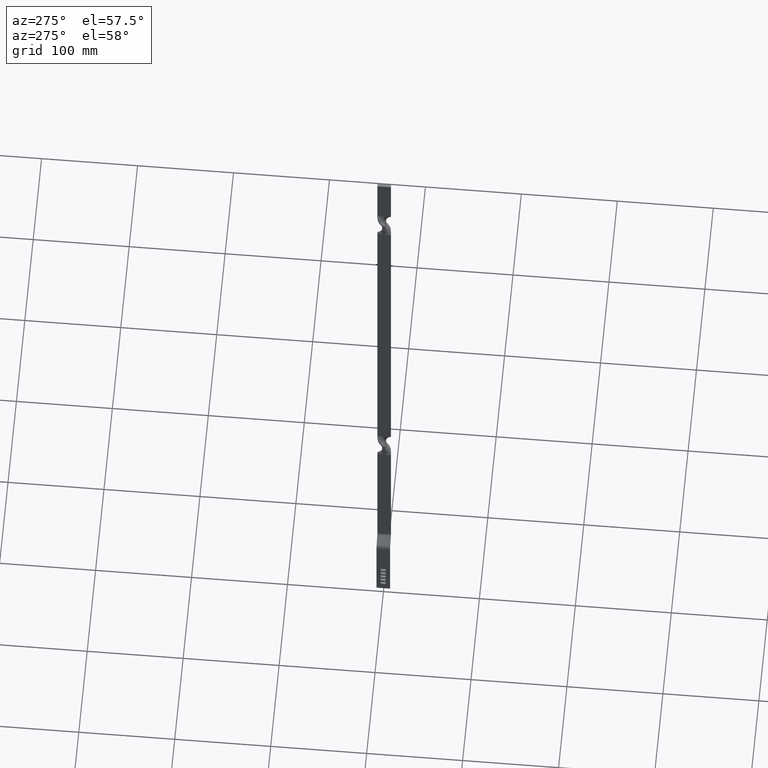
[diagram: clean part render]
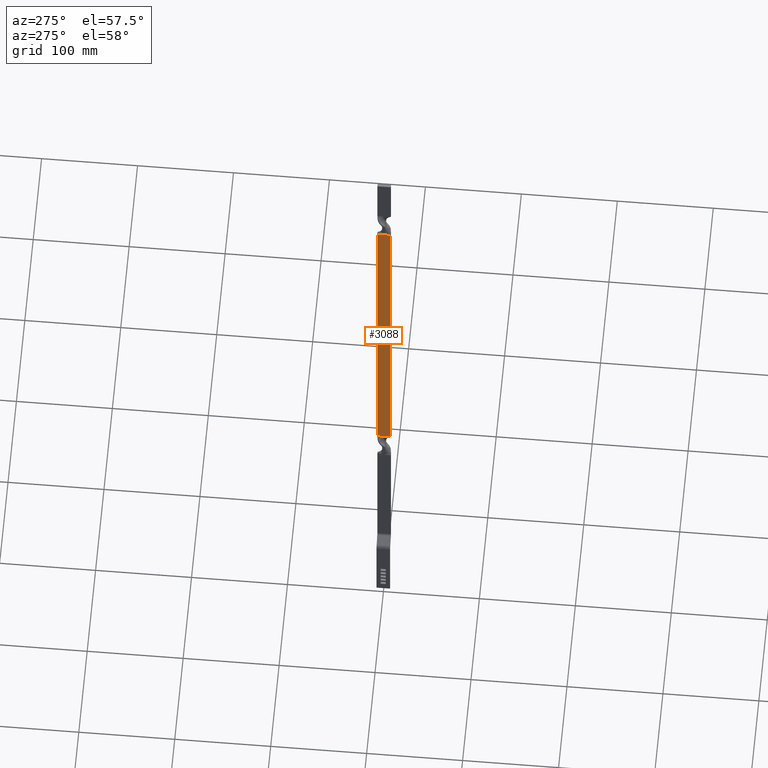
[diagram: same view with one face highlighted and labeled with its STEP entity id]
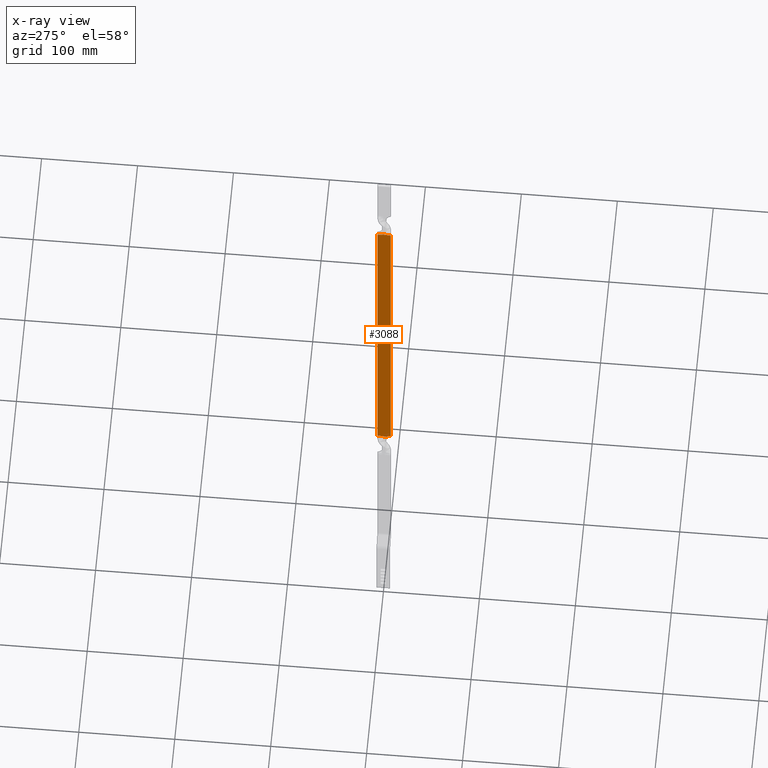
[diagram: x-ray of the same camera — body ghosted, the highlighted face saturated]
A machine part, auxiliary view. The second image highlights one B-rep face of the part: STEP entity #3088.
The next image is the same camera in x-ray: the body ghosted, the highlighted face saturated — about 0% of this face is hidden behind the body in this view.
In plain terms, the highlighted face is a freeform B-spline surface patch.
Its self-contained STEP definition (entity closure, byte-faithful):
#299=CARTESIAN_POINT('',(7.499999999976470,0.271775746038353,656.499999864693000));
#300=VERTEX_POINT('',#299);
#301=CARTESIAN_POINT('',(7.499999999976470,6.999999999999870,655.313138716524010));
#302=VERTEX_POINT('',#301);
#303=CARTESIAN_POINT('',(7.499999999976470,0.271775746038353,656.499999864693000));
#304=CARTESIAN_POINT('',(7.499999999976469,0.828537849573905,656.380513610637540));
#305=CARTESIAN_POINT('',(7.499999999976388,1.385487364079023,656.259859835019030));
#306=CARTESIAN_POINT('',(7.499999999976385,2.501421362213301,656.030177948730400));
#307=CARTESIAN_POINT('',(7.499999999976424,3.060560236041071,655.921247942991270));
#308=CARTESIAN_POINT('',(7.499999999976424,4.182009287864857,655.720279087430190));
#309=CARTESIAN_POINT('',(7.499999999976300,4.743986133300940,655.628099401617080));
#310=CARTESIAN_POINT('',(7.499999999976303,5.870319582463361,655.459521368671290));
#311=CARTESIAN_POINT('',(7.499999999976470,6.434663200717687,655.383036908535470));
#312=CARTESIAN_POINT('',(7.499999999976470,6.999999999999870,655.313138716524010));
#313=B_SPLINE_CURVE_WITH_KNOTS('',3,(#303,#304,#305,#306,#307,#308,#309,#310,#311,#312),.UNSPECIFIED.,.F.,.U.,(4,2,2,2,4),(0.0,0.250000000000000,0.500000000000000,0.750000000000000,1.0),.UNSPECIFIED.);
#314=EDGE_CURVE('',#300,#302,#313,.T.);
#447=CARTESIAN_POINT('',(7.499999999976470,-7.000000000000131,655.289823060113120));
#448=VERTEX_POINT('',#447);
#449=CARTESIAN_POINT('',(7.499999999976470,-7.000000000000131,655.289823060113120));
#450=CARTESIAN_POINT('',(7.499999999976470,-6.389812878324966,655.363019088055690));
#451=CARTESIAN_POINT('',(7.499999999976422,-5.780642736340934,655.443213533535750));
#452=CARTESIAN_POINT('',(7.499999999976418,-4.564574697634991,655.619239040672710));
#453=CARTESIAN_POINT('',(7.499999999976587,-3.957689163754437,655.715155178095760));
#454=CARTESIAN_POINT('',(7.499999999976587,-2.746067614053443,655.921779513215600));
#455=CARTESIAN_POINT('',(7.499999999976475,-2.141573673937930,656.032512532912850));
#456=CARTESIAN_POINT('',(7.499999999976477,-0.934187228391737,656.262608756826920));
#457=CARTESIAN_POINT('',(7.499999999976412,-0.331125423913616,656.381840325032160));
#458=CARTESIAN_POINT('',(7.499999999976470,0.271775746038353,656.499999864693000));
#459=B_SPLINE_CURVE_WITH_KNOTS('',3,(#449,#450,#451,#452,#453,#454,#455,#456,#457,#458),.UNSPECIFIED.,.F.,.U.,(4,2,2,2,4),(0.0,0.250000000000000,0.500000000000000,0.750000000000000,1.0),.UNSPECIFIED.);
#460=EDGE_CURVE('',#448,#300,#459,.T.);
#1584=CARTESIAN_POINT('',(7.499999999976470,0.271775746040857,266.499999864581980));
#1585=VERTEX_POINT('',#1584);
#1618=CARTESIAN_POINT('',(7.499999999976470,6.999999999999870,267.686861012630000));
#1619=VERTEX_POINT('',#1618);
#1620=CARTESIAN_POINT('',(7.499999999976470,6.999999999999861,267.686861012630000));
#1621=CARTESIAN_POINT('',(7.499999999976471,6.434663200717731,267.616962820619510));
#1622=CARTESIAN_POINT('',(7.499999999976607,5.870319582463286,267.540478360485620));
#1623=CARTESIAN_POINT('',(7.499999999976609,4.743986133300860,267.371900327541820));
#1624=CARTESIAN_POINT('',(7.499999999976424,4.182009287864823,267.279720641729230));
#1625=CARTESIAN_POINT('',(7.499999999976424,3.060560236040976,267.078751786170190));
#1626=CARTESIAN_POINT('',(7.499999999976454,2.501421362213195,266.969821780431520));
#1627=CARTESIAN_POINT('',(7.499999999976453,1.385487364078898,266.740139894144700));
#1628=CARTESIAN_POINT('',(7.499999999976470,0.828537849579285,266.619486118501070));
#1629=CARTESIAN_POINT('',(7.499999999976470,0.271775746040857,266.499999864581980));
#1630=B_SPLINE_CURVE_WITH_KNOTS('',3,(#1620,#1621,#1622,#1623,#1624,#1625,#1626,#1627,#1628,#1629),.UNSPECIFIED.,.F.,.U.,(4,2,2,2,4),(0.0,0.250000000000000,0.500000000000000,0.750000000000000,1.0),.UNSPECIFIED.);
#1631=EDGE_CURVE('',#1619,#1585,#1630,.T.);
#1696=CARTESIAN_POINT('',(7.499999999976470,-7.000000000000131,267.710176669059480));
#1697=VERTEX_POINT('',#1696);
#1711=CARTESIAN_POINT('',(7.499999999976470,0.271775746040857,266.499999864581980));
#1712=CARTESIAN_POINT('',(7.499999999976470,-0.331125423910386,266.618159404148630));
#1713=CARTESIAN_POINT('',(7.499999999976484,-0.934187228391861,266.737390972337610));
#1714=CARTESIAN_POINT('',(7.499999999976485,-2.141573673938109,266.967487196252700));
#1715=CARTESIAN_POINT('',(7.499999999976443,-2.746067614053573,267.078220215950810));
#1716=CARTESIAN_POINT('',(7.499999999976440,-3.957689163754502,267.284844551072300));
#1717=CARTESIAN_POINT('',(7.499999999976520,-4.564574697635001,267.380760688496030));
#1718=CARTESIAN_POINT('',(7.499999999976523,-5.780642736340882,267.556786195635420));
#1719=CARTESIAN_POINT('',(7.499999999976471,-6.389812878324962,267.636980641115880));
#1720=CARTESIAN_POINT('',(7.499999999976470,-7.000000000000131,267.710176669059480));
#1721=B_SPLINE_CURVE_WITH_KNOTS('',3,(#1711,#1712,#1713,#1714,#1715,#1716,#1717,#1718,#1719,#1720),.UNSPECIFIED.,.F.,.U.,(4,2,2,2,4),(0.0,0.250000000000000,0.500000000000000,0.750000000000000,1.0),.UNSPECIFIED.);
#1722=EDGE_CURVE('',#1585,#1697,#1721,.T.);
#3062=CARTESIAN_POINT('',(7.499999999976470,6.999999999999870,655.313138716524010));
#3063=CARTESIAN_POINT('',(7.499999999976470,6.999999999999870,267.686861012630000));
#3064=QUASI_UNIFORM_CURVE('',1,(#3062,#3063),.UNSPECIFIED.,.F.,.U.);
#3065=EDGE_CURVE('',#302,#1619,#3064,.T.);
#3071=CARTESIAN_POINT('',(7.499999999976470,-7.699299972865417,247.019500620472090));
#3072=CARTESIAN_POINT('',(7.499999999976470,-7.699299972865417,675.980509569418020));
#3073=CARTESIAN_POINT('',(7.499999999976470,7.699300348374417,247.019500620472090));
#3074=CARTESIAN_POINT('',(7.499999999976470,7.699300348374417,675.980509569418020));
#3075=B_SPLINE_SURFACE_WITH_KNOTS('',1,1,((#3071,#3073),(#3072,#3074)),.UNSPECIFIED.,.F.,.F.,.U.,(2,2),(2,2),(0.0,428.961008948945900),(0.0,15.398600321239829),.UNSPECIFIED.);
#3076=CARTESIAN_POINT('',(7.499999999976470,-7.000000000000131,655.289823060113120));
#3077=CARTESIAN_POINT('',(7.499999999976470,-7.000000000000131,267.710176669059480));
#3078=QUASI_UNIFORM_CURVE('',1,(#3076,#3077),.UNSPECIFIED.,.F.,.U.);
#3079=EDGE_CURVE('',#448,#1697,#3078,.T.);
#3080=ORIENTED_EDGE('',*,*,#3079,.F.);
#3081=ORIENTED_EDGE('',*,*,#460,.T.);
#3082=ORIENTED_EDGE('',*,*,#314,.T.);
#3083=ORIENTED_EDGE('',*,*,#3065,.T.);
#3084=ORIENTED_EDGE('',*,*,#1631,.T.);
#3085=ORIENTED_EDGE('',*,*,#1722,.T.);
#3086=EDGE_LOOP('',(#3080,#3081,#3082,#3083,#3084,#3085));
#3087=FACE_OUTER_BOUND('',#3086,.T.);
#3088=ADVANCED_FACE('',(#3087),#3075,.T.);